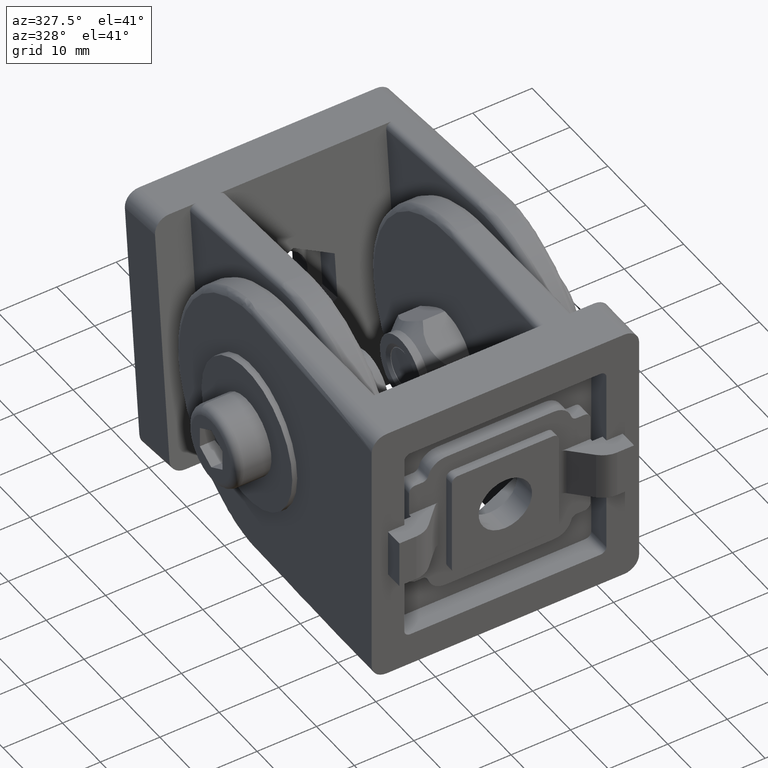
[diagram: clean part render]
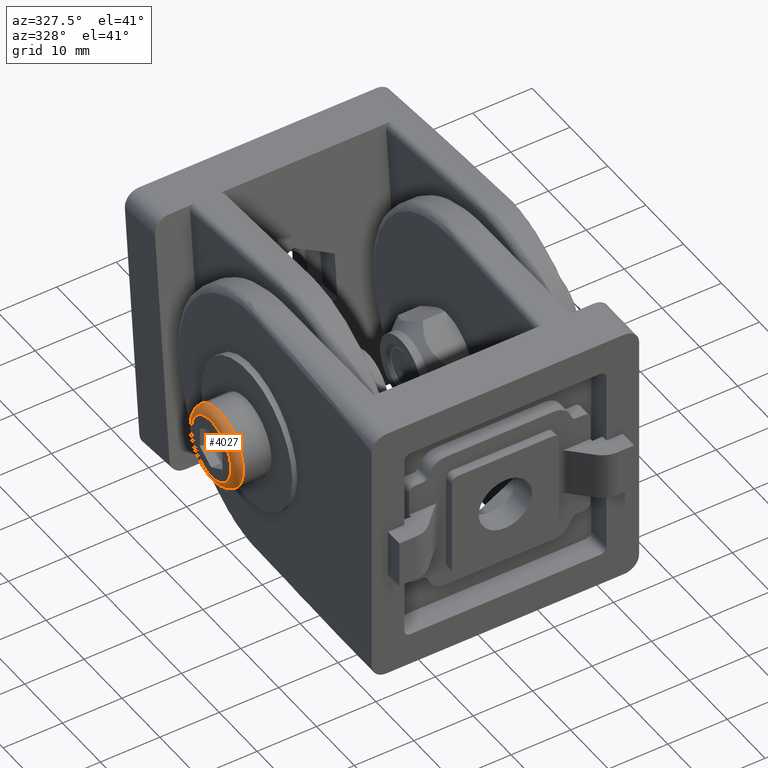
[diagram: same view with one face highlighted and labeled with its STEP entity id]
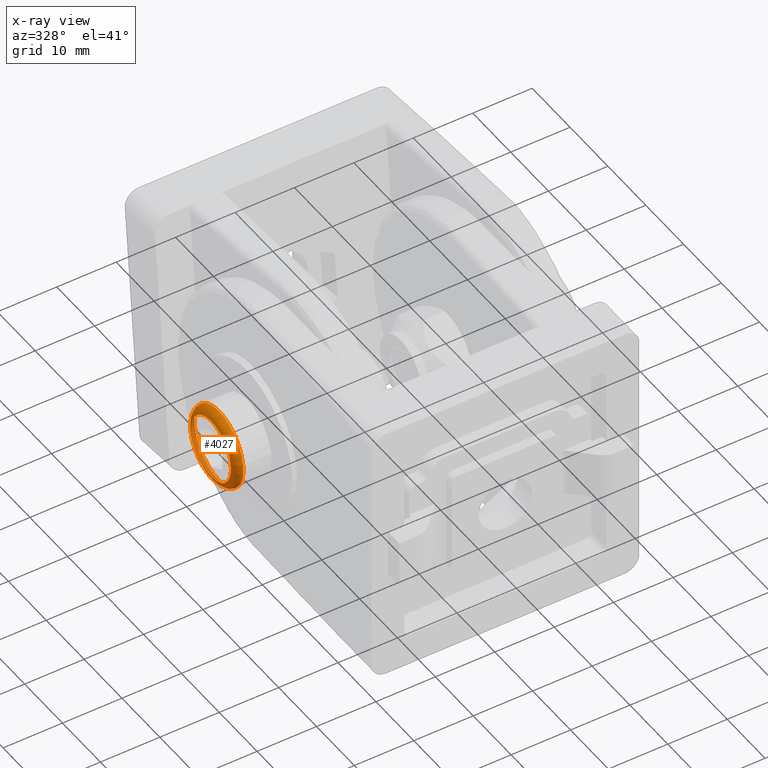
[diagram: x-ray of the same camera — body ghosted, the highlighted face saturated]
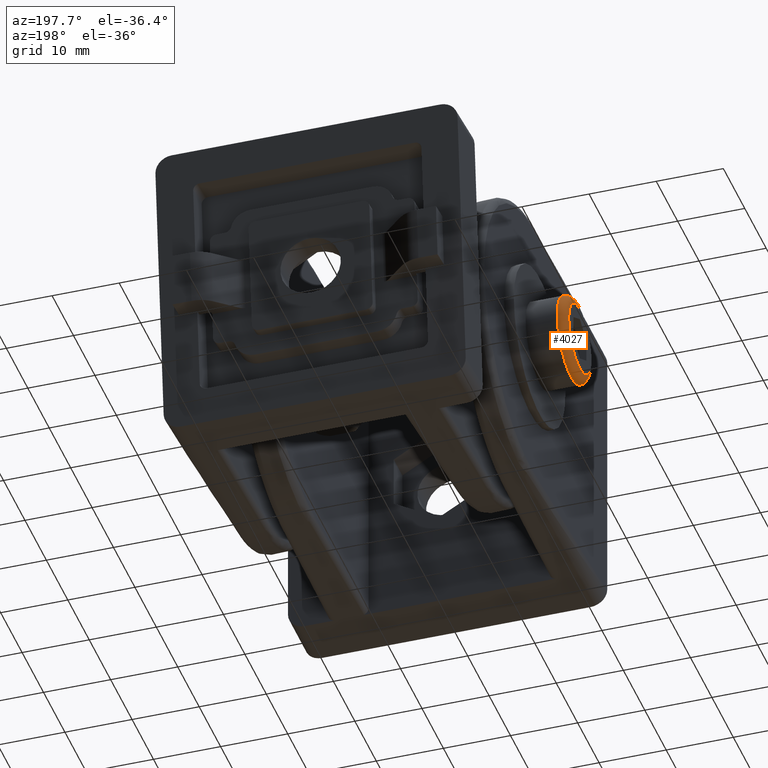
[diagram: same view with one face highlighted and labeled with its STEP entity id]
A machine part, auxiliary view. The second image highlights one B-rep face of the part: STEP entity #4027.
The next image is the same camera in x-ray: the body ghosted, the highlighted face saturated — about 0% of this face is hidden behind the body in this view.
A second angle (auxiliary view) of the same face is appended — the face is thin or edge-on in the first view.
In plain terms, the highlighted toroidal blend (fillet) surface has major radius 5.2 mm and minor (blend) radius 1.3 mm.
Its self-contained STEP definition (entity closure, byte-faithful):
#59=TOROIDAL_SURFACE('',#4359,5.2,1.3);
#956=FACE_BOUND('',#1425,.T.);
#1170=FACE_OUTER_BOUND('',#1424,.T.);
#1424=EDGE_LOOP('',(#3418));
#1425=EDGE_LOOP('',(#3419));
#1666=CIRCLE('',#4358,5.2);
#1667=CIRCLE('',#4360,6.5);
#1982=VERTEX_POINT('',#7311);
#1983=VERTEX_POINT('',#7314);
#2488=EDGE_CURVE('',#1982,#1982,#1666,.T.);
#2489=EDGE_CURVE('',#1983,#1983,#1667,.T.);
#3418=ORIENTED_EDGE('',*,*,#2489,.F.);
#3419=ORIENTED_EDGE('',*,*,#2488,.T.);
#4027=ADVANCED_FACE('',(#1170,#956),#59,.T.);
#4358=AXIS2_PLACEMENT_3D('',#7312,#5180,#5181);
#4359=AXIS2_PLACEMENT_3D('',#7313,#5182,#5183);
#4360=AXIS2_PLACEMENT_3D('',#7315,#5184,#5185);
#5180=DIRECTION('center_axis',(1.,2.29334027171402E-33,0.));
#5181=DIRECTION('ref_axis',(0.,1.,0.));
#5182=DIRECTION('center_axis',(1.,2.29334027171402E-33,0.));
#5183=DIRECTION('ref_axis',(0.,0.,-1.));
#5184=DIRECTION('center_axis',(1.,2.29334027171402E-33,0.));
#5185=DIRECTION('ref_axis',(0.,1.,0.));
#7311=CARTESIAN_POINT('',(-8.32678593159861E-16,5.2,0.));
#7312=CARTESIAN_POINT('Origin',(-1.11022302462516E-15,-1.03200312227131E-32,
0.));
#7313=CARTESIAN_POINT('Origin',(1.3,0.,0.));
#7314=CARTESIAN_POINT('',(1.3,6.5,0.));
#7315=CARTESIAN_POINT('Origin',(1.3,-7.33868886948485E-33,0.));